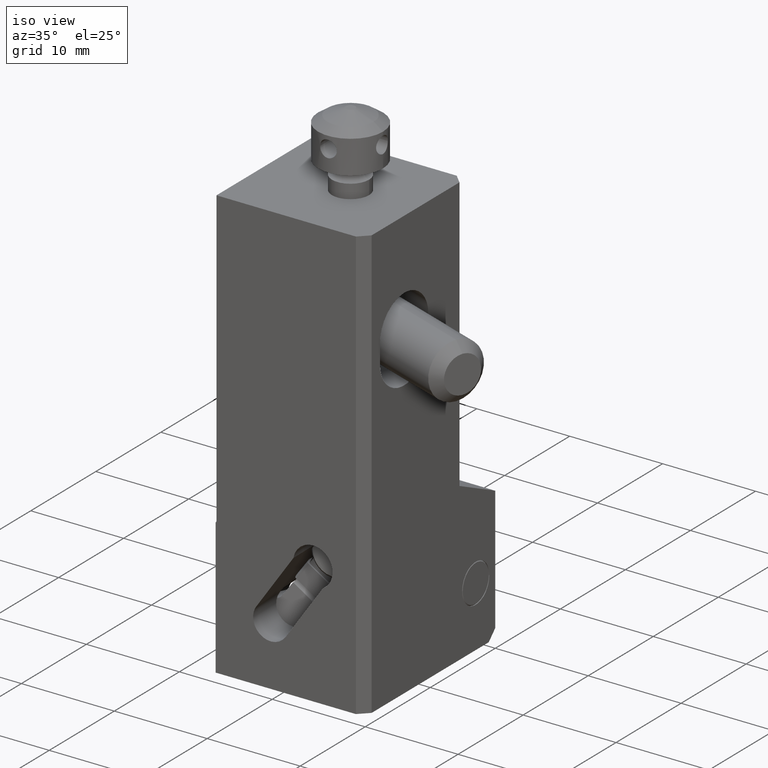
[diagram: clean part render]
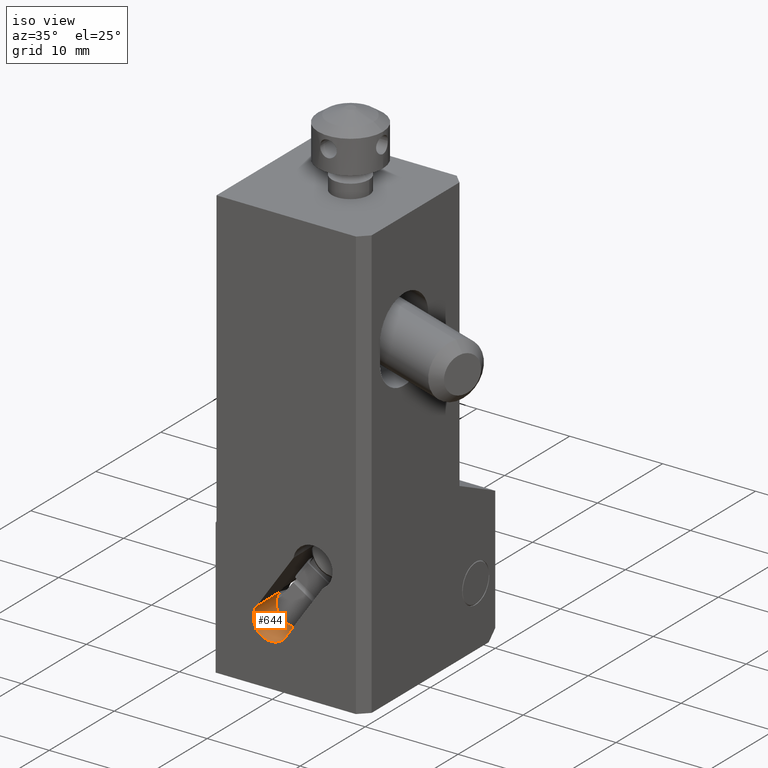
[diagram: same view with one face highlighted and labeled with its STEP entity id]
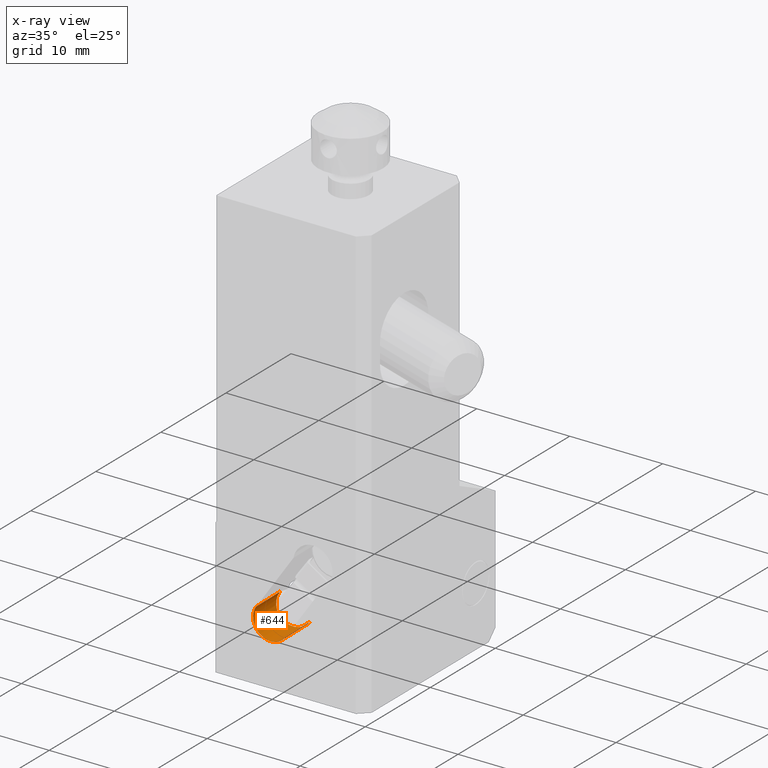
[diagram: x-ray of the same camera — body ghosted, the highlighted face saturated]
A machine part, iso view. The second image highlights one B-rep face of the part: STEP entity #644.
The next image is the same camera in x-ray: the body ghosted, the highlighted face saturated — about 0% of this face is hidden behind the body in this view.
In plain terms, the highlighted cylindrical surface (edge-blend (fillet) strip) has radius 1.9 mm, axis along (-0.1299, 0.987, -0.095).
Its self-contained STEP definition (entity closure, byte-faithful):
#162=CYLINDRICAL_SURFACE('',#4408,1.900000000065);
#246=CIRCLE('',#4397,1.900000000065);
#423=FACE_OUTER_BOUND('',#1057,.T.);
#644=ADVANCED_FACE('',(#423),#162,.F.);
#951=ELLIPSE('',#4329,1.92510786689399,1.900000000065);
#1057=EDGE_LOOP('',(#1497,#1498,#1499,#1500));
#1497=ORIENTED_EDGE('',*,*,#3001,.F.);
#1498=ORIENTED_EDGE('',*,*,#2862,.F.);
#1499=ORIENTED_EDGE('',*,*,#2990,.F.);
#1500=ORIENTED_EDGE('',*,*,#2985,.T.);
#2473=VERTEX_POINT('',#6082);
#2474=VERTEX_POINT('',#6084);
#2568=VERTEX_POINT('',#6391);
#2569=VERTEX_POINT('',#6393);
#2862=EDGE_CURVE('',#2473,#2474,#951,.T.);
#2985=EDGE_CURVE('',#2569,#2568,#246,.T.);
#2990=EDGE_CURVE('',#2569,#2473,#3548,.T.);
#3001=EDGE_CURVE('',#2474,#2568,#3556,.T.);
#3548=LINE('',#6402,#3910);
#3556=LINE('',#6421,#3918);
#3910=VECTOR('',#5045,1.);
#3918=VECTOR('',#5067,1.);
#4329=AXIS2_PLACEMENT_3D('',#6083,#4821,#4822);
#4397=AXIS2_PLACEMENT_3D('',#6392,#5036,#5037);
#4408=AXIS2_PLACEMENT_3D('',#6423,#5070,#5071);
#4821=DIRECTION('',(0.,1.,0.));
#4822=DIRECTION('',(-0.807153161032117,0.,-0.590342082724805));
#5036=DIRECTION('',(-0.129935443990299,0.986957683119595,-0.0950332159102496));
#5037=DIRECTION('',(0.821678127313764,0.053538523827355,-0.567431653646968));
#5045=DIRECTION('',(0.129935443994999,-0.986957683118293,0.0950332159173493));
#5067=DIRECTION('',(-0.129935443996301,0.986957683117911,-0.095033215919541));
#5070=DIRECTION('',(-0.129935443990299,0.986957683119595,-0.0950332159102496));
#5071=DIRECTION('',(0.0167124436659005,-0.0936521138506639,-0.995464703441573));
#6082=CARTESIAN_POINT('',(-8.57069556079698,0.,-40.994978747946));
#6083=CARTESIAN_POINT('',(-10.1452761154451,0.,-39.9266534356423));
#6084=CARTESIAN_POINT('',(-11.7198566700412,-6.22853620532E-13,-38.8583281232557));
#6391=CARTESIAN_POINT('',(-12.31515074746,4.521707436866,-39.29371902853));
#6392=CARTESIAN_POINT('',(-10.75396230556,4.623430632126,-40.37183917058));
#6393=CARTESIAN_POINT('',(-9.192773863653,4.725153827407,-41.44995931252));
#6402=CARTESIAN_POINT('',(-9.192773863653,4.725153827407,-41.44995931252));
#6421=CARTESIAN_POINT('',(-11.71985667,-1.245707241064E-12,-38.85832812323));
#6423=CARTESIAN_POINT('',(-10.11944243667,-0.1962262718107,-39.9077589947));